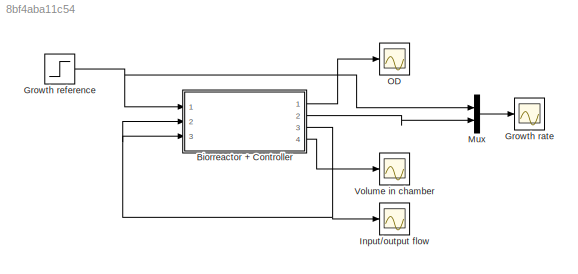
MODEL slx_8bf4aba11c54
KIND model
CONFIG AbsTol = 1e-6
CONFIG EnableMultiTasking = off
CONFIG FixedStep = auto
CONFIG MaxStep = 1
CONFIG MinStep = auto
CONFIG RelTol = 1e-3
CONFIG SampleTimeConstraint = Unconstrained
CONFIG SolverName = ode45
CONFIG StartTime = 0.0
CONFIG StopTime = 1000
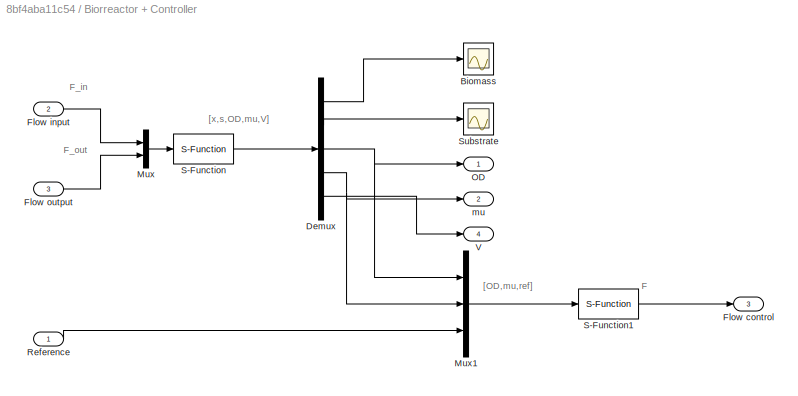
BLOCK [SubSystem] Biorreactor + Controller
  Ports = [3, 4]
  RequestExecContextInheritance = off
BLOCK [Scope] Biorreactor + Controller/Biomass
  Floating = off
  NumInputPorts = 1
  Ports = [1]
  ScopeSpecificationString = Simulink.scopes.TimeScopeBlockCfg('CurrentConfiguration', extmgr.ConfigurationSet(extmgr.Configuration('Core','General UI',true),extmgr.Configuration('Core','Source UI',true),extmgr.Configuration('Sources','WiredSimulink',true),extmgr.Configuration('Visuals','Time Domain',true,'SerializedDisplays',{struct('MinYLimReal','-0.10375','MaxYLimReal','1.93375','YLabelReal','','MinYLimMag','0.00000','MaxY...<+1406ch>
BLOCK [Demux] Biorreactor + Controller/Demux
  Outputs = 5
  Ports = [1, 5]
BLOCK [Outport] Biorreactor + Controller/Flow control
  Port = 3
BLOCK [Inport] Biorreactor + Controller/Flow input
  Port = 2
BLOCK [Inport] Biorreactor + Controller/Flow output
  Port = 3
BLOCK [Mux] Biorreactor + Controller/Mux
  DisplayOption = bar
  Inputs = 2
  Ports = [2, 1]
BLOCK [Mux] Biorreactor + Controller/Mux1
  DisplayOption = bar
  Inputs = 3
  Ports = [3, 1]
BLOCK [Outport] Biorreactor + Controller/OD
BLOCK [Inport] Biorreactor + Controller/Reference
BLOCK [S-Function] Biorreactor + Controller/S-Function
  EnableBusSupport = off
  FunctionName = biorreactor
  Parameters = [0.1 16 15],p
  Ports = [1, 1]
  SFcnIsStateOwnerBlock = off
  SFunctionDeploymentMode = off
BLOCK [S-Function] Biorreactor + Controller/S-Function1
  EnableBusSupport = off
  FunctionName = controllerGrowth
  Parameters = p
  Ports = [1, 1]
  SFcnIsStateOwnerBlock = off
  SFunctionDeploymentMode = off
BLOCK [Scope] Biorreactor + Controller/Substrate
  Floating = off
  NumInputPorts = 1
  Ports = [1]
  ScopeSpecificationString = Simulink.scopes.TimeScopeBlockCfg('CurrentConfiguration', extmgr.ConfigurationSet(extmgr.Configuration('Core','General UI',true),extmgr.Configuration('Core','Source UI',true),extmgr.Configuration('Sources','WiredSimulink',true,'DataLoggingVariableName','ScopeData1'),extmgr.Configuration('Visuals','Time Domain',true,'SerializedDisplays',{struct('MinYLimReal','13.21686','MaxYLimReal','16.30924','YLa...<+1451ch>
BLOCK [Outport] Biorreactor + Controller/V
  Port = 4
BLOCK [Outport] Biorreactor + Controller/mu
  Port = 2
BLOCK [Scope] Growth rate
  Floating = off
  NumInputPorts = 1
  Ports = [1]
  ScopeSpecificationString = Simulink.scopes.TimeScopeBlockCfg('CurrentConfiguration', extmgr.ConfigurationSet(extmgr.Configuration('Core','General UI',true),extmgr.Configuration('Core','Source UI',true),extmgr.Configuration('Sources','WiredSimulink',true,'DataLoggingVariableName','ScopeData3'),extmgr.Configuration('Visuals','Time Domain',true,'SerializedDisplays',{struct('MinYLimReal','0.00442','MaxYLimReal','0.03126','YLabe...<+1481ch>
BLOCK [Step] Growth reference
  After = 0.02
  Before = 0.01
  SampleTime = 0
  Time = 600
BLOCK [Scope] Input//output flow
  Floating = off
  NumInputPorts = 1
  Ports = [1]
  ScopeSpecificationString = Simulink.scopes.TimeScopeBlockCfg('CurrentConfiguration', extmgr.ConfigurationSet(extmgr.Configuration('Core','General UI',true),extmgr.Configuration('Core','Source UI',true),extmgr.Configuration('Sources','WiredSimulink',true,'DataLoggingVariableName','ScopeData1'),extmgr.Configuration('Visuals','Time Domain',true,'SerializedDisplays',{struct('MinYLimReal','0.13125','MaxYLimReal','0.31875','YLabe...<+1412ch>
BLOCK [Mux] Mux
  DisplayOption = bar
  Inputs = 2
  Ports = [2, 1]
BLOCK [Scope] OD
  Floating = off
  NumInputPorts = 1
  Ports = [1]
  ScopeSpecificationString = Simulink.scopes.TimeScopeBlockCfg('CurrentConfiguration', extmgr.ConfigurationSet(extmgr.Configuration('Core','General UI',true),extmgr.Configuration('Core','Source UI',true),extmgr.Configuration('Sources','WiredSimulink',true,'DataLoggingVariableName','ScopeData2'),extmgr.Configuration('Visuals','Time Domain',true,'SerializedDisplays',{struct('MinYLimReal','-0.76882','MaxYLimReal','9.22886','YLab...<+1465ch>
BLOCK [Scope] Volume in chamber
  Floating = off
  NumInputPorts = 1
  Ports = [1]
  ScopeSpecificationString = Simulink.scopes.TimeScopeBlockCfg('CurrentConfiguration', extmgr.ConfigurationSet(extmgr.Configuration('Core','General UI',true),extmgr.Configuration('Core','Source UI',true),extmgr.Configuration('Sources','WiredSimulink',true,'DataLoggingVariableName','ScopeData1'),extmgr.Configuration('Visuals','Time Domain',true,'SerializedDisplays',{struct('MinYLimReal','5.00000','MaxYLimReal','25.00000','YLab...<+1466ch>
ANNOTATION Biorreactor + Controller: F
ANNOTATION Biorreactor + Controller: F_in
ANNOTATION Biorreactor + Controller: F_out
ANNOTATION Biorreactor + Controller: [OD,mu,ref]
ANNOTATION Biorreactor + Controller: [x,s,OD,mu,V]
LINE Biorreactor + Controller/Demux:1 -> Biorreactor + Controller/Biomass:1
LINE Biorreactor + Controller/Demux:2 -> Biorreactor + Controller/Substrate:1
NET Biorreactor + Controller/Demux:3 -> Biorreactor + Controller/Mux1:1, Biorreactor + Controller/OD:1
NET Biorreactor + Controller/Demux:4 -> Biorreactor + Controller/Mux1:2, Biorreactor + Controller/mu:1
LINE Biorreactor + Controller/Demux:5 -> Biorreactor + Controller/V:1
LINE Biorreactor + Controller/Flow input:1 -> Biorreactor + Controller/Mux:1
LINE Biorreactor + Controller/Flow output:1 -> Biorreactor + Controller/Mux:2
LINE Biorreactor + Controller/Mux1:1 -> Biorreactor + Controller/S-Function1:1
LINE Biorreactor + Controller/Mux:1 -> Biorreactor + Controller/S-Function:1
LINE Biorreactor + Controller/Reference:1 -> Biorreactor + Controller/Mux1:3
LINE Biorreactor + Controller/S-Function1:1 -> Biorreactor + Controller/Flow control:1
LINE Biorreactor + Controller/S-Function:1 -> Biorreactor + Controller/Demux:1
LINE Biorreactor + Controller:1 -> OD:1
LINE Biorreactor + Controller:2 -> Mux:2
NET Biorreactor + Controller:3 -> Biorreactor + Controller:2, Biorreactor + Controller:3, Input//output flow:1
LINE Biorreactor + Controller:4 -> Volume in chamber:1
NET Growth reference:1 -> Biorreactor + Controller:1, Mux:1
LINE Mux:1 -> Growth rate:1
note: NET lines group one-source signal fan-out (src -> all destinations, sorted); 1:1 wires keep LINE
